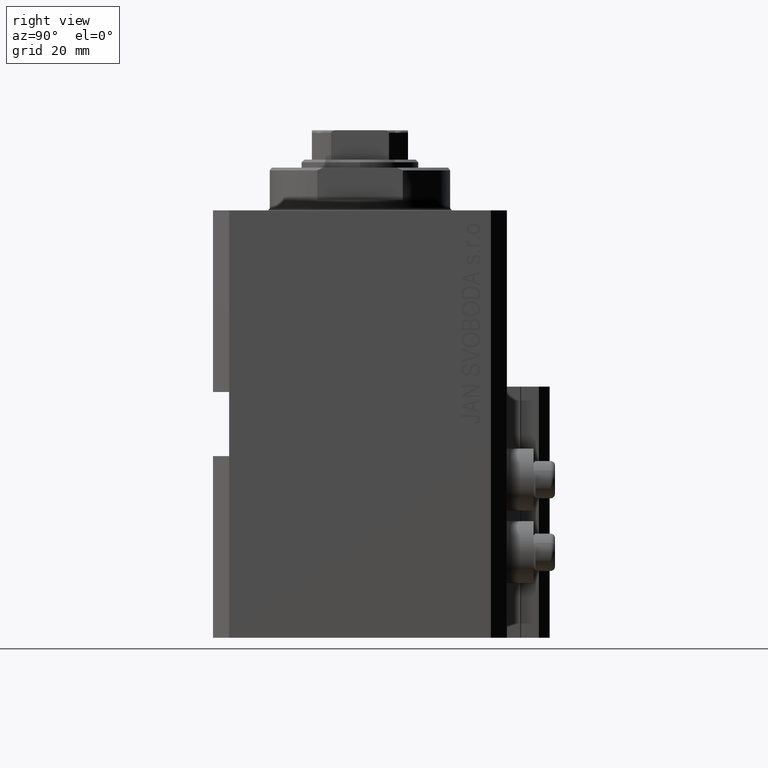
[diagram: clean part render]
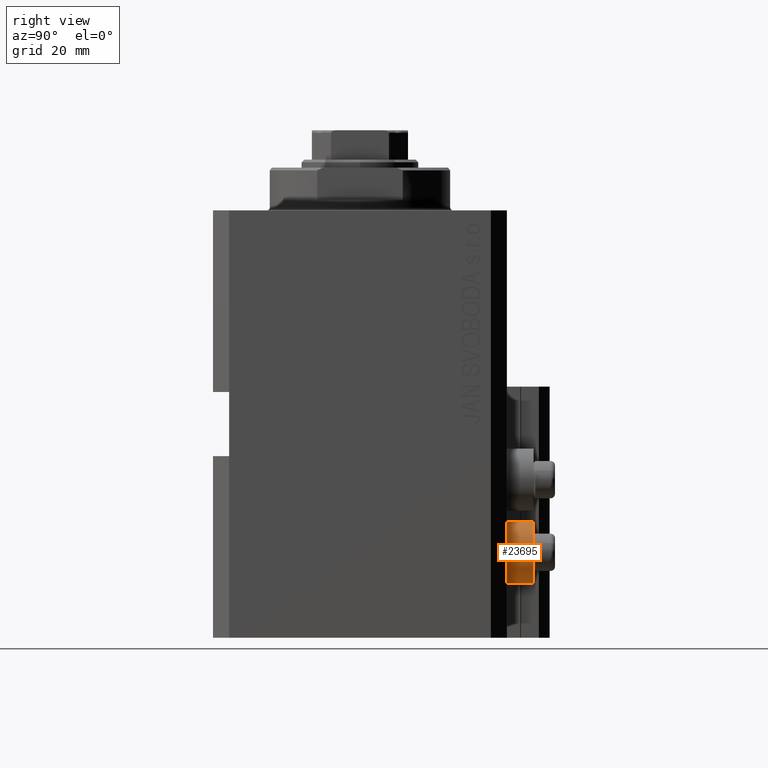
[diagram: same view with one face highlighted and labeled with its STEP entity id]
A machine part, right view. The second image highlights one B-rep face of the part: STEP entity #23695.
In plain terms, the highlighted cylindrical surface (edge-blend (fillet) strip) has radius 5.8 mm, axis along (0, 1, 0).
Its self-contained STEP definition (entity closure, byte-faithful):
#247 = DIRECTION ( 'NONE',  ( 0.000000000000000000, 1.000000000000000000, 0.000000000000000000 ) ) ;
#674 = DIRECTION ( 'NONE',  ( 0.000000000000000000, 1.000000000000000000, 0.000000000000000000 ) ) ;
#913 = ORIENTED_EDGE ( 'NONE', *, *, #9601, .T. ) ;
#981 = VERTEX_POINT ( 'NONE', #4069 ) ;
#1249 = ORIENTED_EDGE ( 'NONE', *, *, #14367, .F. ) ;
#1671 = ORIENTED_EDGE ( 'NONE', *, *, #21143, .T. ) ;
#3959 = EDGE_LOOP ( 'NONE', ( #12072, #913, #1671, #1249 ) ) ;
#4069 = CARTESIAN_POINT ( 'NONE',  ( 18.00000000000000355, 27.50000000000000355, -69.79999999999999716 ) ) ;
#4146 = DIRECTION ( 'NONE',  ( 0.000000000000000000, 1.000000000000000000, 0.000000000000000000 ) ) ;
#6657 = AXIS2_PLACEMENT_3D ( 'NONE', #40197, #674, #46208 ) ;
#7711 = CYLINDRICAL_SURFACE ( 'NONE', #28867, 5.799999999999999822 ) ;
#8368 = EDGE_CURVE ( 'NONE', #45525, #12911, #39111, .T. ) ;
#9601 = EDGE_CURVE ( 'NONE', #45525, #981, #27044, .T. ) ;
#11892 = VECTOR ( 'NONE', #34612, 1000.000000000000000 ) ;
#12072 = ORIENTED_EDGE ( 'NONE', *, *, #8368, .F. ) ;
#12911 = VERTEX_POINT ( 'NONE', #35536 ) ;
#14016 = CARTESIAN_POINT ( 'NONE',  ( 18.00000000000000355, 32.49999999996100541, -58.20000000000000284 ) ) ;
#14224 = VERTEX_POINT ( 'NONE', #41351 ) ;
#14367 = EDGE_CURVE ( 'NONE', #12911, #14224, #22612, .T. ) ;
#14794 = FACE_OUTER_BOUND ( 'NONE', #3959, .T. ) ;
#18136 = CARTESIAN_POINT ( 'NONE',  ( 18.00000000000000355, 32.49999999996100541, -64.00000000000000000 ) ) ;
#21143 = EDGE_CURVE ( 'NONE', #981, #14224, #43328, .T. ) ;
#22612 = CIRCLE ( 'NONE', #31617, 5.799999999999999822 ) ;
#23695 = ADVANCED_FACE ( 'NONE', ( #14794 ), #7711, .T. ) ;
#25327 = CARTESIAN_POINT ( 'NONE',  ( 18.00000000000000355, 32.49999999996100541, -69.79999999999999716 ) ) ;
#27044 = CIRCLE ( 'NONE', #6657, 5.799999999999999822 ) ;
#28867 = AXIS2_PLACEMENT_3D ( 'NONE', #29217, #4146, #36792 ) ;
#29217 = CARTESIAN_POINT ( 'NONE',  ( 18.00000000000000355, 32.49999999996100541, -64.00000000000000000 ) ) ;
#30321 = VECTOR ( 'NONE', #247, 1000.000000000000000 ) ;
#31617 = AXIS2_PLACEMENT_3D ( 'NONE', #18136, #39901, #36107 ) ;
#34612 = DIRECTION ( 'NONE',  ( 0.000000000000000000, 1.000000000000000000, 0.000000000000000000 ) ) ;
#35536 = CARTESIAN_POINT ( 'NONE',  ( 18.00000000000000355, 32.49999999996100541, -58.20000000000000284 ) ) ;
#36107 = DIRECTION ( 'NONE',  ( 0.000000000000000000, 0.000000000000000000, -1.000000000000000000 ) ) ;
#36792 = DIRECTION ( 'NONE',  ( 0.000000000000000000, 0.000000000000000000, -1.000000000000000000 ) ) ;
#38064 = CARTESIAN_POINT ( 'NONE',  ( 18.00000000000000355, 27.50000000000000355, -58.20000000000000284 ) ) ;
#39111 = LINE ( 'NONE', #14016, #11892 ) ;
#39901 = DIRECTION ( 'NONE',  ( 0.000000000000000000, 1.000000000000000000, 0.000000000000000000 ) ) ;
#40197 = CARTESIAN_POINT ( 'NONE',  ( 18.00000000000000355, 27.50000000000000355, -64.00000000000000000 ) ) ;
#41351 = CARTESIAN_POINT ( 'NONE',  ( 18.00000000000000355, 32.49999999996100541, -69.79999999999999716 ) ) ;
#43328 = LINE ( 'NONE', #25327, #30321 ) ;
#45525 = VERTEX_POINT ( 'NONE', #38064 ) ;
#46208 = DIRECTION ( 'NONE',  ( 0.000000000000000000, 0.000000000000000000, -1.000000000000000000 ) ) ;